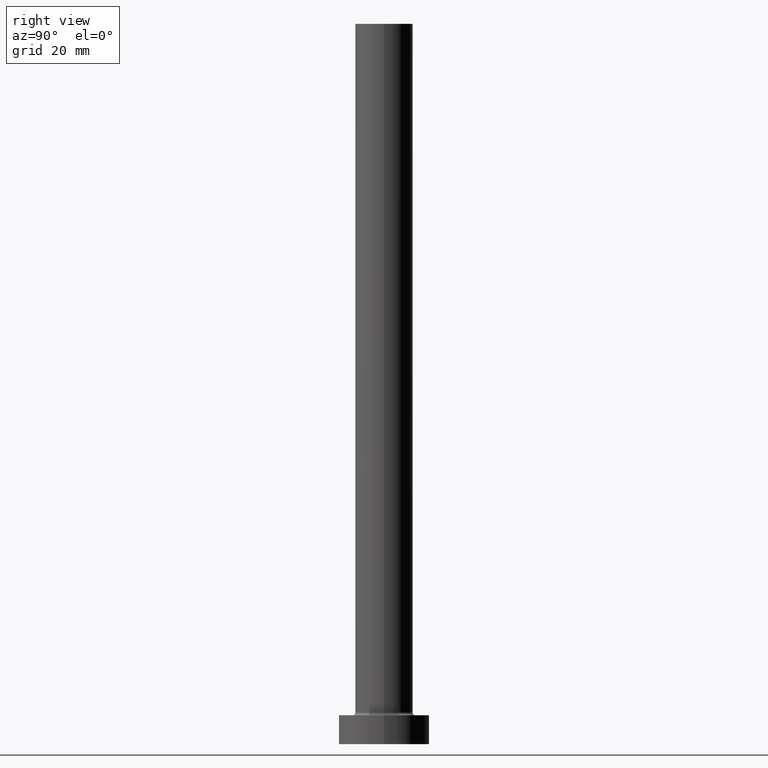
[diagram: clean part render]
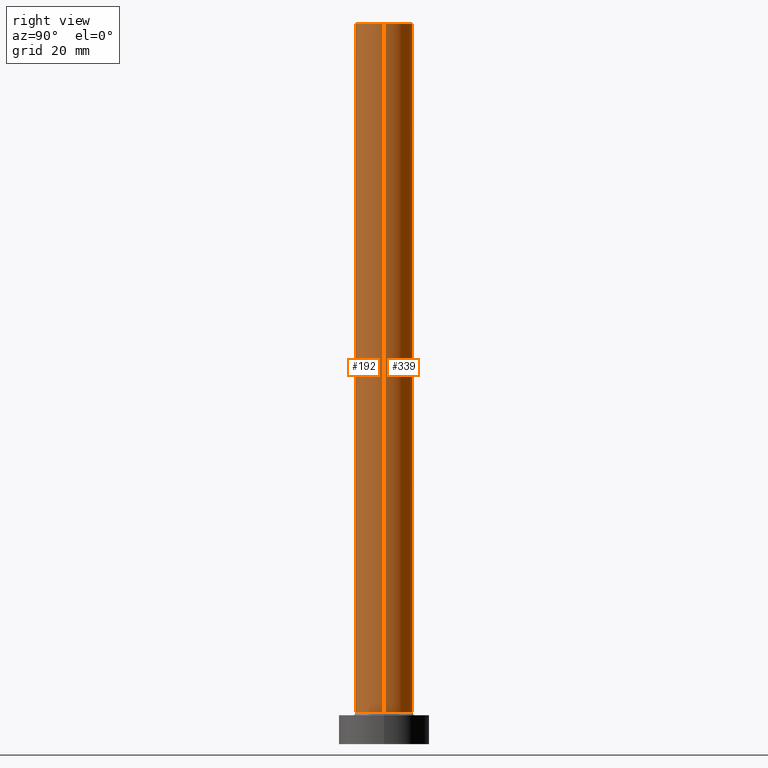
[diagram: same view with one multi-face feature highlighted, each face labeled with its STEP entity id]
A machine part, right view. The highlighted faces form ONE feature: a constant-radius fillet chain: 2 tangent blend faces with common blend radius 7 mm. The faces share edges in the B-rep.
Their STEP definitions:
[1] entity #192 (Cylinder):
#14 = DIRECTION ( 'NONE',  ( -1.000000000000000000, 0.000000000000000000, 0.000000000000000000 ) ) ;
#18 = CARTESIAN_POINT ( 'NONE',  ( 0.000000000000000000, 0.000000000000000000, 7.700000000000012612 ) ) ;
#19 = ORIENTED_EDGE ( 'NONE', *, *, #292, .T. ) ;
#28 = CARTESIAN_POINT ( 'NONE',  ( 7.000000000000000888, 8.572527594031472204E-16, 7.700000000000012612 ) ) ;
#43 = VERTEX_POINT ( 'NONE', #319 ) ;
#54 = EDGE_CURVE ( 'NONE', #219, #43, #266, .T. ) ;
#79 = CIRCLE ( 'NONE', #307, 7.000000000000000888 ) ;
#86 = CYLINDRICAL_SURFACE ( 'NONE', #389, 7.000000000000000888 ) ;
#88 = VECTOR ( 'NONE', #447, 1000.000000000000000 ) ;
#120 = EDGE_CURVE ( 'NONE', #219, #206, #427, .T. ) ;
#122 = CARTESIAN_POINT ( 'NONE',  ( 7.000000000000000888, 8.572527594031472204E-16, 175.0000000000000284 ) ) ;
#130 = CARTESIAN_POINT ( 'NONE',  ( 7.000000000000000888, 8.572527594031472204E-16, 175.0000000000000284 ) ) ;
#146 = ORIENTED_EDGE ( 'NONE', *, *, #120, .F. ) ;
#150 = LINE ( 'NONE', #122, #380 ) ;
#151 = DIRECTION ( 'NONE',  ( 1.000000000000000000, 0.000000000000000000, 0.000000000000000000 ) ) ;
#181 = EDGE_LOOP ( 'NONE', ( #204, #146, #283, #19 ) ) ;
#192 = ADVANCED_FACE ( 'NONE', ( #422 ), #86, .T. ) ;
#204 = ORIENTED_EDGE ( 'NONE', *, *, #222, .F. ) ;
#206 = VERTEX_POINT ( 'NONE', #130 ) ;
#219 = VERTEX_POINT ( 'NONE', #297 ) ;
#221 = DIRECTION ( 'NONE',  ( 1.000000000000000000, 0.000000000000000000, 0.000000000000000000 ) ) ;
#222 = EDGE_CURVE ( 'NONE', #206, #259, #150, .T. ) ;
#233 = CARTESIAN_POINT ( 'NONE',  ( 0.000000000000000000, 0.000000000000000000, 175.0000000000000284 ) ) ;
#259 = VERTEX_POINT ( 'NONE', #28 ) ;
#266 = LINE ( 'NONE', #408, #88 ) ;
#272 = DIRECTION ( 'NONE',  ( 0.000000000000000000, 0.000000000000000000, 1.000000000000000000 ) ) ;
#283 = ORIENTED_EDGE ( 'NONE', *, *, #54, .T. ) ;
#292 = EDGE_CURVE ( 'NONE', #43, #259, #79, .T. ) ;
#297 = CARTESIAN_POINT ( 'NONE',  ( -7.000000000000000888, 0.000000000000000000, 175.0000000000000284 ) ) ;
#307 = AXIS2_PLACEMENT_3D ( 'NONE', #18, #272, #151 ) ;
#319 = CARTESIAN_POINT ( 'NONE',  ( -7.000000000000000888, 0.000000000000000000, 7.700000000000012612 ) ) ;
#328 = AXIS2_PLACEMENT_3D ( 'NONE', #233, #376, #221 ) ;
#332 = CARTESIAN_POINT ( 'NONE',  ( 0.000000000000000000, 0.000000000000000000, 175.0000000000000284 ) ) ;
#376 = DIRECTION ( 'NONE',  ( 0.000000000000000000, 0.000000000000000000, 1.000000000000000000 ) ) ;
#380 = VECTOR ( 'NONE', #437, 1000.000000000000000 ) ;
#389 = AXIS2_PLACEMENT_3D ( 'NONE', #332, #397, #14 ) ;
#397 = DIRECTION ( 'NONE',  ( -0.000000000000000000, -0.000000000000000000, -1.000000000000000000 ) ) ;
#408 = CARTESIAN_POINT ( 'NONE',  ( -7.000000000000000888, 0.000000000000000000, 175.0000000000000284 ) ) ;
#422 = FACE_OUTER_BOUND ( 'NONE', #181, .T. ) ;
#427 = CIRCLE ( 'NONE', #328, 7.000000000000000888 ) ;
#437 = DIRECTION ( 'NONE',  ( -0.000000000000000000, -0.000000000000000000, -1.000000000000000000 ) ) ;
#447 = DIRECTION ( 'NONE',  ( -0.000000000000000000, -0.000000000000000000, -1.000000000000000000 ) ) ;
[2] entity #339 (Cylinder):
#10 = AXIS2_PLACEMENT_3D ( 'NONE', #351, #354, #417 ) ;
#28 = CARTESIAN_POINT ( 'NONE',  ( 7.000000000000000888, 8.572527594031472204E-16, 7.700000000000012612 ) ) ;
#30 = CIRCLE ( 'NONE', #256, 7.000000000000000888 ) ;
#43 = VERTEX_POINT ( 'NONE', #319 ) ;
#44 = AXIS2_PLACEMENT_3D ( 'NONE', #363, #136, #333 ) ;
#54 = EDGE_CURVE ( 'NONE', #219, #43, #266, .T. ) ;
#88 = VECTOR ( 'NONE', #447, 1000.000000000000000 ) ;
#107 = FACE_OUTER_BOUND ( 'NONE', #258, .T. ) ;
#122 = CARTESIAN_POINT ( 'NONE',  ( 7.000000000000000888, 8.572527594031472204E-16, 175.0000000000000284 ) ) ;
#130 = CARTESIAN_POINT ( 'NONE',  ( 7.000000000000000888, 8.572527594031472204E-16, 175.0000000000000284 ) ) ;
#136 = DIRECTION ( 'NONE',  ( 0.000000000000000000, 0.000000000000000000, 1.000000000000000000 ) ) ;
#150 = LINE ( 'NONE', #122, #380 ) ;
#158 = ORIENTED_EDGE ( 'NONE', *, *, #217, .T. ) ;
#170 = CIRCLE ( 'NONE', #44, 7.000000000000000888 ) ;
#206 = VERTEX_POINT ( 'NONE', #130 ) ;
#207 = CYLINDRICAL_SURFACE ( 'NONE', #10, 7.000000000000000888 ) ;
#215 = DIRECTION ( 'NONE',  ( 1.000000000000000000, 0.000000000000000000, 0.000000000000000000 ) ) ;
#217 = EDGE_CURVE ( 'NONE', #259, #43, #30, .T. ) ;
#219 = VERTEX_POINT ( 'NONE', #297 ) ;
#222 = EDGE_CURVE ( 'NONE', #206, #259, #150, .T. ) ;
#249 = ORIENTED_EDGE ( 'NONE', *, *, #54, .F. ) ;
#256 = AXIS2_PLACEMENT_3D ( 'NONE', #358, #360, #215 ) ;
#258 = EDGE_LOOP ( 'NONE', ( #377, #338, #158, #249 ) ) ;
#259 = VERTEX_POINT ( 'NONE', #28 ) ;
#266 = LINE ( 'NONE', #408, #88 ) ;
#276 = EDGE_CURVE ( 'NONE', #206, #219, #170, .T. ) ;
#297 = CARTESIAN_POINT ( 'NONE',  ( -7.000000000000000888, 0.000000000000000000, 175.0000000000000284 ) ) ;
#319 = CARTESIAN_POINT ( 'NONE',  ( -7.000000000000000888, 0.000000000000000000, 7.700000000000012612 ) ) ;
#333 = DIRECTION ( 'NONE',  ( 1.000000000000000000, 0.000000000000000000, 0.000000000000000000 ) ) ;
#338 = ORIENTED_EDGE ( 'NONE', *, *, #222, .T. ) ;
#339 = ADVANCED_FACE ( 'NONE', ( #107 ), #207, .T. ) ;
#351 = CARTESIAN_POINT ( 'NONE',  ( 0.000000000000000000, 0.000000000000000000, 175.0000000000000284 ) ) ;
#354 = DIRECTION ( 'NONE',  ( -0.000000000000000000, -0.000000000000000000, -1.000000000000000000 ) ) ;
#358 = CARTESIAN_POINT ( 'NONE',  ( 0.000000000000000000, 0.000000000000000000, 7.700000000000012612 ) ) ;
#360 = DIRECTION ( 'NONE',  ( 0.000000000000000000, 0.000000000000000000, 1.000000000000000000 ) ) ;
#363 = CARTESIAN_POINT ( 'NONE',  ( 0.000000000000000000, 0.000000000000000000, 175.0000000000000284 ) ) ;
#377 = ORIENTED_EDGE ( 'NONE', *, *, #276, .F. ) ;
#380 = VECTOR ( 'NONE', #437, 1000.000000000000000 ) ;
#408 = CARTESIAN_POINT ( 'NONE',  ( -7.000000000000000888, 0.000000000000000000, 175.0000000000000284 ) ) ;
#417 = DIRECTION ( 'NONE',  ( -1.000000000000000000, 0.000000000000000000, 0.000000000000000000 ) ) ;
#437 = DIRECTION ( 'NONE',  ( -0.000000000000000000, -0.000000000000000000, -1.000000000000000000 ) ) ;
#447 = DIRECTION ( 'NONE',  ( -0.000000000000000000, -0.000000000000000000, -1.000000000000000000 ) ) ;